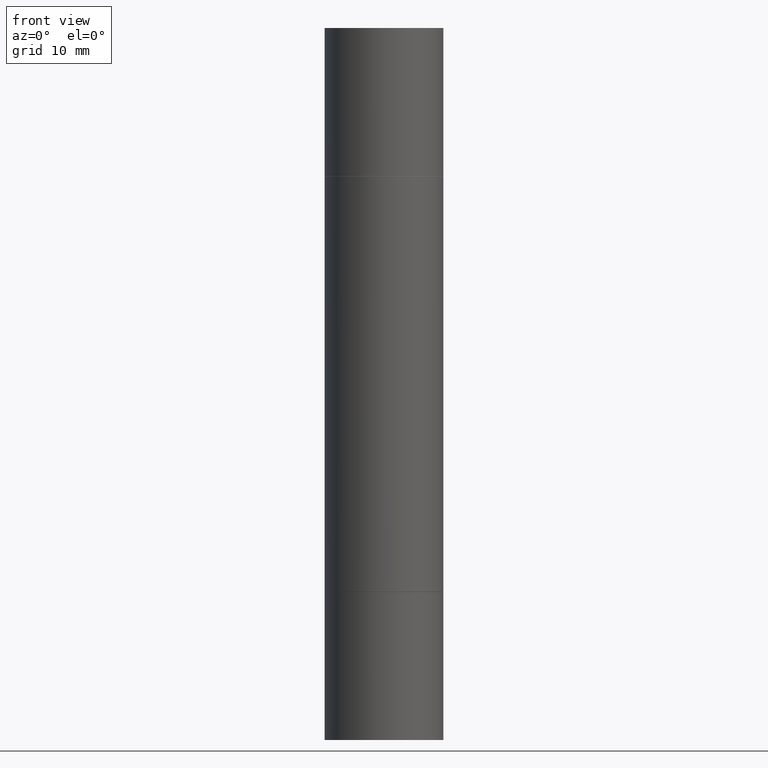
[diagram: clean part render]
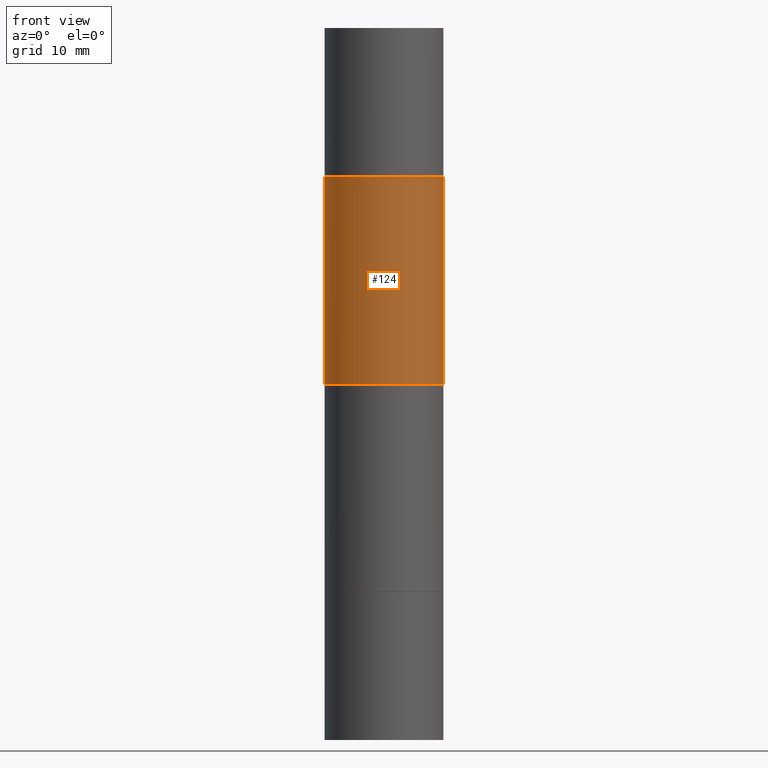
[diagram: same view with one face highlighted and labeled with its STEP entity id]
A machine part, front view. The second image highlights one B-rep face of the part: STEP entity #124.
In plain terms, the highlighted cylindrical surface (partial cylindrical patch) has radius 6.35 mm, axis along (-0, -0, -1).
Its self-contained STEP definition (entity closure, byte-faithful):
#1 = CARTESIAN_POINT ( 'NONE',  ( 0.2499999999999998335, -1.222229829501391012E-14, -2.999999999999999112 ) ) ;
#8 = VECTOR ( 'NONE', #304, 39.37007874015748143 ) ;
#23 = CYLINDRICAL_SURFACE ( 'NONE', #643, 0.2499999999999998335 ) ;
#24 = EDGE_CURVE ( 'NONE', #300, #570, #110, .T. ) ;
#27 = ORIENTED_EDGE ( 'NONE', *, *, #149, .F. ) ;
#80 = CARTESIAN_POINT ( 'NONE',  ( 0.000000000000000000, -1.047655762559234344E-14, -2.999999999999999112 ) ) ;
#90 = DIRECTION ( 'NONE',  ( 1.000000000000000000, -6.982962677686266711E-15, 0.000000000000000000 ) ) ;
#110 = CIRCLE ( 'NONE', #368, 0.2500000000000000000 ) ;
#112 = DIRECTION ( 'NONE',  ( 0.000000000000000000, 1.000000000000000000, -3.278217592397118229E-15 ) ) ;
#124 = ADVANCED_FACE ( 'NONE', ( #550 ), #23, .T. ) ;
#129 = VECTOR ( 'NONE', #312, 39.37007874015748143 ) ;
#149 = EDGE_CURVE ( 'NONE', #570, #383, #255, .T. ) ;
#153 = EDGE_CURVE ( 'NONE', #300, #186, #358, .T. ) ;
#186 = VERTEX_POINT ( 'NONE', #309 ) ;
#255 = LINE ( 'NONE', #1, #129 ) ;
#281 = CIRCLE ( 'NONE', #652, 0.2499999999999998335 ) ;
#282 = ORIENTED_EDGE ( 'NONE', *, *, #24, .F. ) ;
#300 = VERTEX_POINT ( 'NONE', #613 ) ;
#301 = EDGE_LOOP ( 'NONE', ( #282, #610, #655, #27 ) ) ;
#304 = DIRECTION ( 'NONE',  ( -2.445468806185136877E-29, -3.492890411551753071E-15, -1.000000000000000000 ) ) ;
#309 = CARTESIAN_POINT ( 'NONE',  ( -0.2499999999999998335, -1.995704398973716874E-15, -1.499999999999999556 ) ) ;
#312 = DIRECTION ( 'NONE',  ( -2.445468806185136877E-29, -3.492890411551753071E-15, -1.000000000000000000 ) ) ;
#358 = LINE ( 'NONE', #420, #8 ) ;
#363 = CARTESIAN_POINT ( 'NONE',  ( 5.805542945883514935E-29, -2.184435788568482141E-15, -0.6259999999999990017 ) ) ;
#368 = AXIS2_PLACEMENT_3D ( 'NONE', #363, #560, #90 ) ;
#370 = CARTESIAN_POINT ( 'NONE',  ( 0.2500000000000000000, -3.930176457990049608E-15, -0.6259999999999990017 ) ) ;
#377 = CARTESIAN_POINT ( 'NONE',  ( 3.668203209277703774E-29, -5.237222008264716599E-15, -1.499999999999999556 ) ) ;
#383 = VERTEX_POINT ( 'NONE', #586 ) ;
#420 = CARTESIAN_POINT ( 'NONE',  ( -0.2499999999999998335, -8.761433126149462132E-15, -2.999999999999999112 ) ) ;
#501 = DIRECTION ( 'NONE',  ( -2.445468806185136597E-29, -3.492890411551752677E-15, -1.000000000000000000 ) ) ;
#534 = DIRECTION ( 'NONE',  ( -0.000000000000000000, -3.492185875197449130E-15, -1.000000000000000000 ) ) ;
#550 = FACE_OUTER_BOUND ( 'NONE', #301, .T. ) ;
#560 = DIRECTION ( 'NONE',  ( 2.445468806185136597E-29, 3.492890411551752677E-15, 1.000000000000000000 ) ) ;
#570 = VERTEX_POINT ( 'NONE', #370 ) ;
#586 = CARTESIAN_POINT ( 'NONE',  ( 0.2499999999999998335, -5.456569567838164864E-15, -1.499999999999999556 ) ) ;
#610 = ORIENTED_EDGE ( 'NONE', *, *, #153, .T. ) ;
#613 = CARTESIAN_POINT ( 'NONE',  ( -0.2500000000000000000, -4.693112891255996450E-16, -0.6259999999999990017 ) ) ;
#643 = AXIS2_PLACEMENT_3D ( 'NONE', #80, #501, #651 ) ;
#651 = DIRECTION ( 'NONE',  ( 1.000000000000000000, -6.982962677686267499E-15, 0.000000000000000000 ) ) ;
#652 = AXIS2_PLACEMENT_3D ( 'NONE', #377, #534, #112 ) ;
#655 = ORIENTED_EDGE ( 'NONE', *, *, #675, .F. ) ;
#675 = EDGE_CURVE ( 'NONE', #383, #186, #281, .T. ) ;